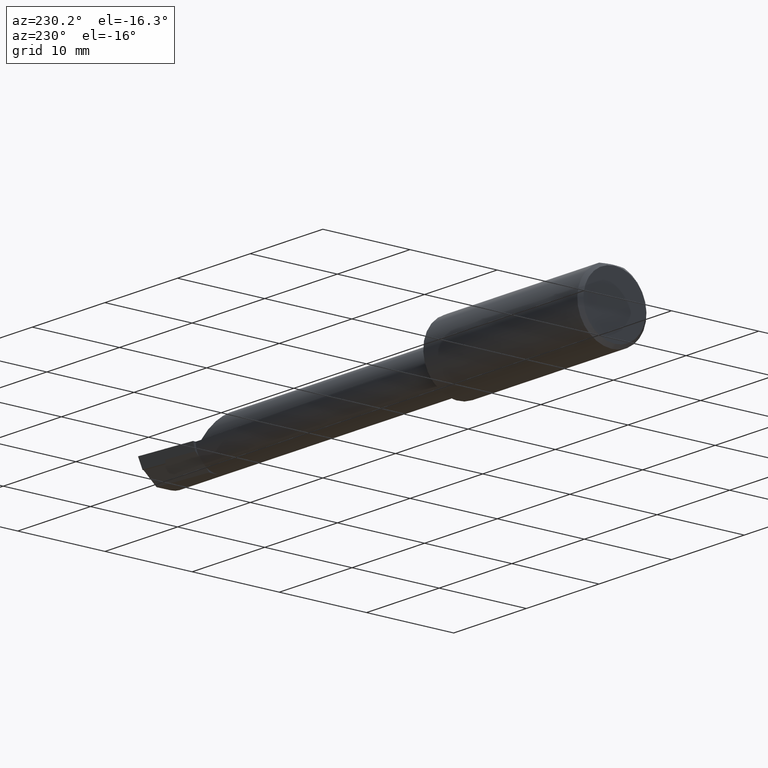
[diagram: clean part render]
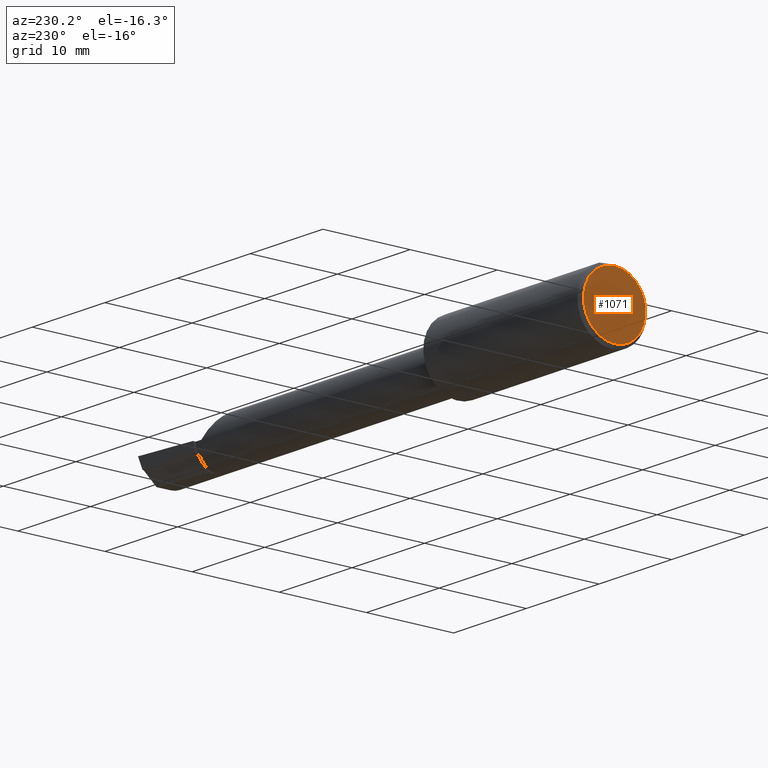
[diagram: same view with one face highlighted and labeled with its STEP entity id]
A machine part, auxiliary view. The second image highlights one B-rep face of the part: STEP entity #1071.
In plain terms, the highlighted planar face has unit normal (1, 0, 0).
Its self-contained STEP definition (entity closure, byte-faithful):
#7 = DIRECTION ( 'NONE',  ( 0.000000000000000000, 0.000000000000000000, -1.000000000000000000 ) ) ;
#9 = CARTESIAN_POINT ( 'NONE',  ( 0.000000000000000000, 0.000000000000000000, -3.583940000000000570 ) ) ;
#146 = CARTESIAN_POINT ( 'NONE',  ( 0.000000000000000000, 0.000000000000000000, 0.000000000000000000 ) ) ;
#234 = CARTESIAN_POINT ( 'NONE',  ( 0.000000000000000000, 4.622355864573735845E-16, 3.583940000000000570 ) ) ;
#255 = AXIS2_PLACEMENT_3D ( 'NONE', #146, #441, #7 ) ;
#441 = DIRECTION ( 'NONE',  ( -1.000000000000000000, -0.000000000000000000, -0.000000000000000000 ) ) ;
#463 = CARTESIAN_POINT ( 'NONE',  ( 0.000000000000000000, 0.000000000000000000, 0.000000000000000000 ) ) ;
#496 = CIRCLE ( 'NONE', #255, 3.583940000000000570 ) ;
#510 = EDGE_CURVE ( 'NONE', #739, #646, #1091, .T. ) ;
#520 = AXIS2_PLACEMENT_3D ( 'NONE', #463, #557, #1124 ) ;
#557 = DIRECTION ( 'NONE',  ( -1.000000000000000000, -0.000000000000000000, -0.000000000000000000 ) ) ;
#577 = EDGE_LOOP ( 'NONE', ( #1206, #590 ) ) ;
#590 = ORIENTED_EDGE ( 'NONE', *, *, #510, .T. ) ;
#646 = VERTEX_POINT ( 'NONE', #9 ) ;
#671 = DIRECTION ( 'NONE',  ( 0.000000000000000000, 0.000000000000000000, -1.000000000000000000 ) ) ;
#676 = PLANE ( 'NONE',  #1087 ) ;
#739 = VERTEX_POINT ( 'NONE', #234 ) ;
#930 = EDGE_CURVE ( 'NONE', #646, #739, #496, .T. ) ;
#946 = FACE_OUTER_BOUND ( 'NONE', #577, .T. ) ;
#1053 = CARTESIAN_POINT ( 'NONE',  ( 0.000000000000000000, 0.000000000000000000, 0.000000000000000000 ) ) ;
#1071 = ADVANCED_FACE ( 'NONE', ( #946 ), #676, .F. ) ;
#1087 = AXIS2_PLACEMENT_3D ( 'NONE', #1053, #1236, #671 ) ;
#1091 = CIRCLE ( 'NONE', #520, 3.583940000000000570 ) ;
#1124 = DIRECTION ( 'NONE',  ( 0.000000000000000000, 0.000000000000000000, -1.000000000000000000 ) ) ;
#1206 = ORIENTED_EDGE ( 'NONE', *, *, #930, .T. ) ;
#1236 = DIRECTION ( 'NONE',  ( 1.000000000000000000, 0.000000000000000000, 0.000000000000000000 ) ) ;